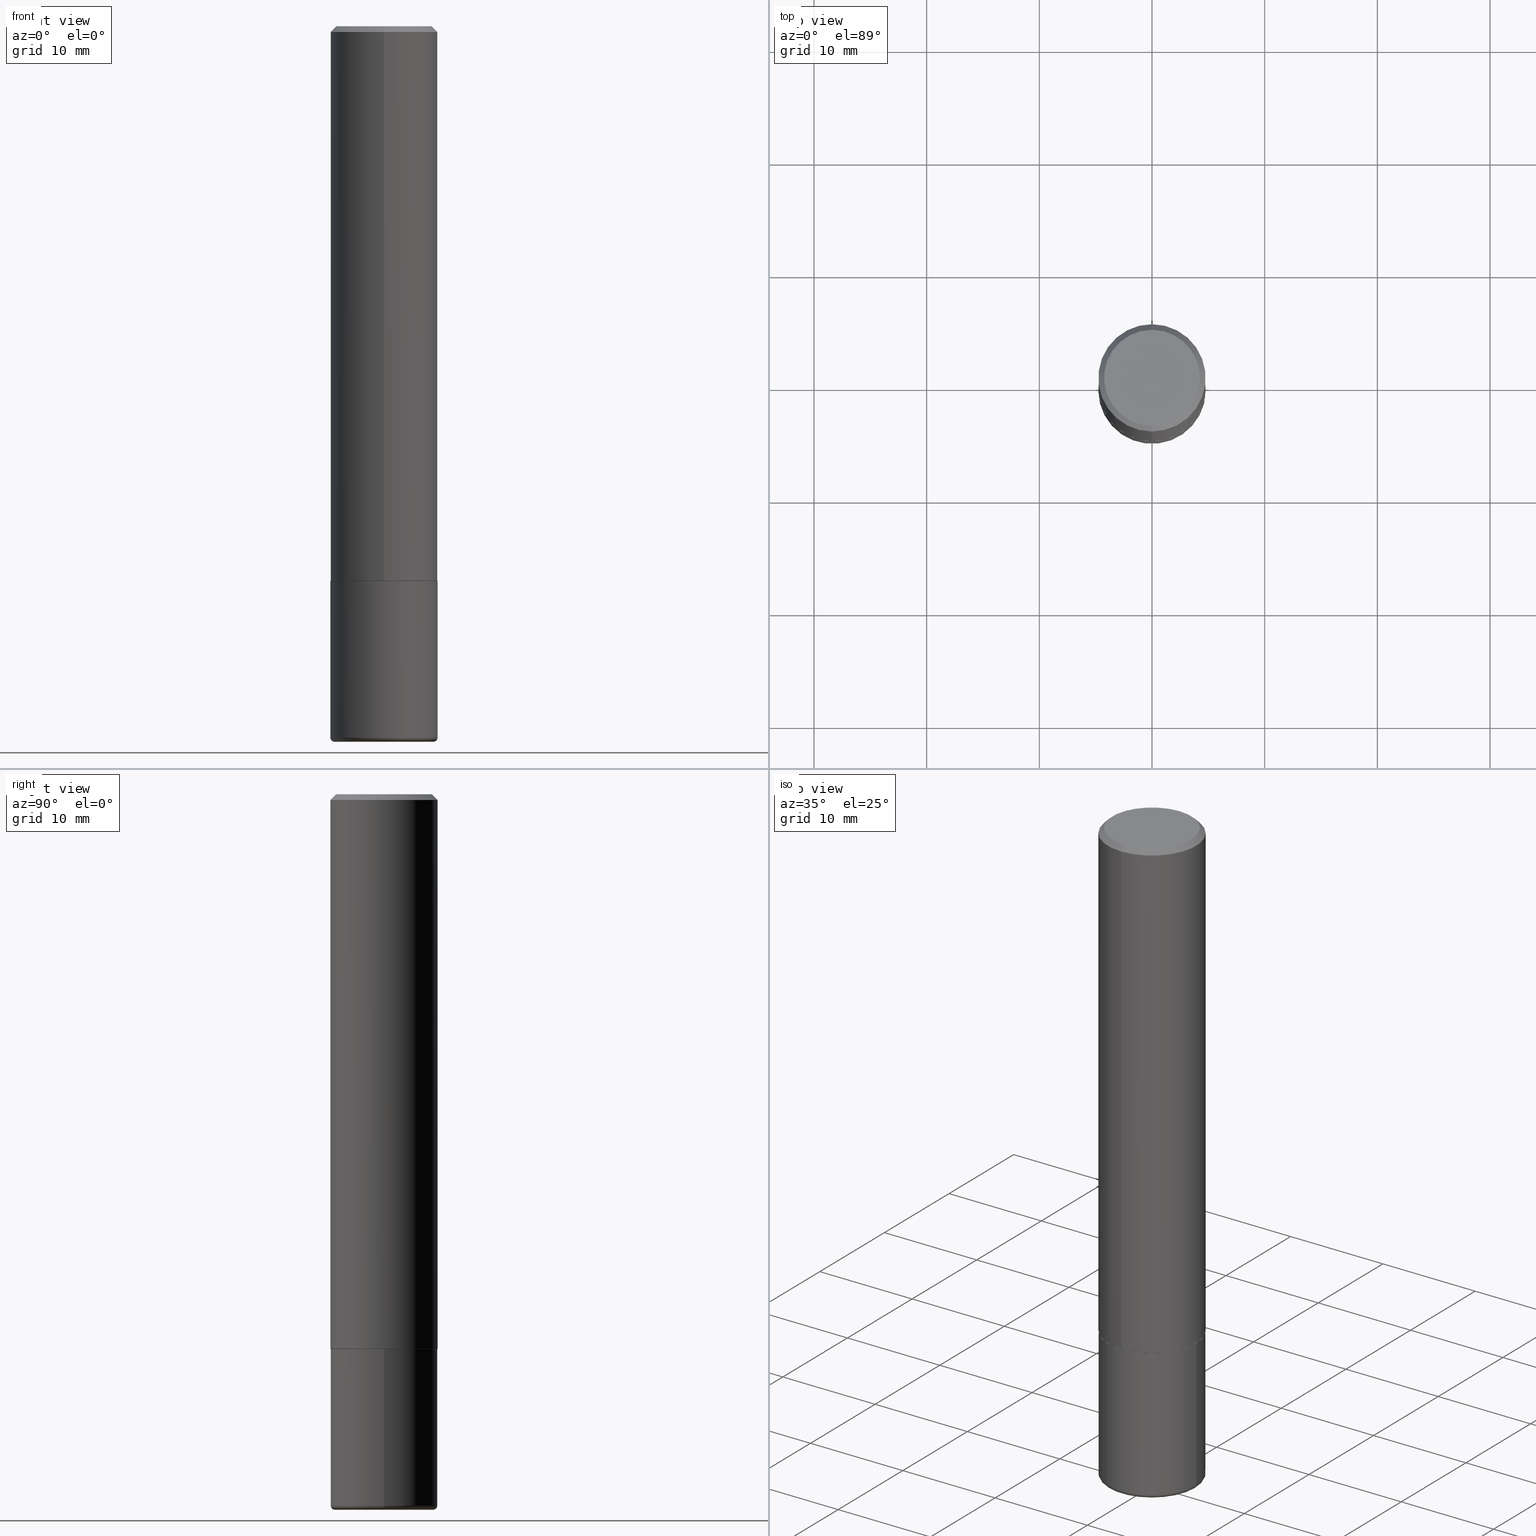
[diagram: canonical four-view strip — front | top / right | iso, engineering-drawing reading convention]
A machine part, canonical four-view strip (front | top / right | iso — engineering-drawing reading convention). The complete STEP part file that produces these views, byte-faithful:
ISO-10303-21;
HEADER;
FILE_DESCRIPTION (( 'STEP AP203' ),
    '1' );
FILE_NAME ('91244.STEP',
    '2024-03-06T17:16:14',
    ( '' ),
    ( '' ),
    'SwSTEP 2.0',
    'SolidWorks 2023',
    '' );
FILE_SCHEMA (( 'CONFIG_CONTROL_DESIGN' ));
ENDSEC;

DATA;
#1 = ORIENTED_EDGE ( 'NONE', *, *, #78, .T. ) ;
#2 = FACE_OUTER_BOUND ( 'NONE', #201, .T. ) ;
#3 = CARTESIAN_POINT ( 'NONE',  ( 1.325162202192633778E-15, 0.1864999999999932268, -1.938000000000000389 ) ) ;
#4 = VERTEX_POINT ( 'NONE', #258 ) ;
#5 = CARTESIAN_POINT ( 'NONE',  ( 6.113672015462842613E-29, -8.728703347107864943E-15, -2.500000000000000000 ) ) ;
#6 = AXIS2_PLACEMENT_3D ( 'NONE', #368, #16, #301 ) ;
#7 = APPROVAL ( #179, 'UNSPECIFIED' ) ;
#8 = ORIENTED_EDGE ( 'NONE', *, *, #147, .T. ) ;
#9 = PERSON_AND_ORGANIZATION ( #64, #192 ) ;
#10 = LENGTH_MEASURE_WITH_UNIT ( LENGTH_MEASURE( 0.02539999999999999897 ), #383 );
#11 = DIRECTION ( 'NONE',  ( -6.982962677686266711E-15, -1.000000000000000000, 3.483106191921935949E-15 ) ) ;
#12 = EDGE_CURVE ( 'NONE', #384, #259, #284, .T. ) ;
#13 = APPROVAL ( #26, 'UNSPECIFIED' ) ;
#14 = FACE_OUTER_BOUND ( 'NONE', #287, .T. ) ;
#15 = AXIS2_PLACEMENT_3D ( 'NONE', #274, #374, #215 ) ;
#16 = DIRECTION ( 'NONE',  ( -2.446468172034013014E-29, 3.490050190067182892E-15, 1.000000000000000000 ) ) ;
#17 = DIRECTION ( 'NONE',  ( -6.982962677686266711E-15, -1.000000000000000000, 3.490050190067182498E-15 ) ) ;
#18 = AXIS2_PLACEMENT_3D ( 'NONE', #311, #166, #11 ) ;
#19 = PRODUCT_DEFINITION_FORMATION_WITH_SPECIFIED_SOURCE ( 'ANY', '', #181, .NOT_KNOWN. ) ;
#20 = DIRECTION ( 'NONE',  ( -2.445468806185136597E-29, 3.491481338843145583E-15, 1.000000000000000000 ) ) ;
#21 = COORDINATED_UNIVERSAL_TIME_OFFSET ( 5, 0, .BEHIND. ) ;
#22 = APPROVAL_ROLE ( '' ) ;
#23 = EDGE_CURVE ( 'NONE', #202, #4, #389, .T. ) ;
#24 = CIRCLE ( 'NONE', #266, 0.1864999999999999714 ) ;
#25 = CC_DESIGN_APPROVAL ( #310, ( #19 ) ) ;
#26 = APPROVAL_STATUS ( 'not_yet_approved' ) ;
#27 = EDGE_CURVE ( 'NONE', #4, #289, #117, .T. ) ;
#28 = DIRECTION ( 'NONE',  ( 0.000000000000000000, 0.000000000000000000, 1.000000000000000000 ) ) ;
#29 = DATE_AND_TIME ( #188, #69 ) ;
#30 = ORIENTED_EDGE ( 'NONE', *, *, #47, .T. ) ;
#31 = VECTOR ( 'NONE', #175, 39.37007874015748143 ) ;
#32 = DESIGN_CONTEXT ( 'detailed design', #276, 'design' ) ;
#33 = ORIENTED_EDGE ( 'NONE', *, *, #271, .F. ) ;
#34 = CARTESIAN_POINT ( 'NONE',  ( 4.892936344068047188E-31, -6.980100380134394825E-17, -0.02000000000000008715 ) ) ;
#35 = DIRECTION ( 'NONE',  ( -2.446468172034013014E-29, 3.490050190067182892E-15, 1.000000000000000000 ) ) ;
#36 = ORIENTED_EDGE ( 'NONE', *, *, #342, .F. ) ;
#37 = DIRECTION ( 'NONE',  ( 2.446468172034013014E-29, -3.490050190067182892E-15, -1.000000000000000000 ) ) ;
#38 = DIRECTION ( 'NONE',  ( -2.446468172034013014E-29, 3.490050190067182892E-15, 1.000000000000000000 ) ) ;
#39 = EDGE_CURVE ( 'NONE', #289, #267, #72, .T. ) ;
#40 = ADVANCED_FACE ( 'NONE', ( #297 ), #307, .T. ) ;
#41 = ORIENTED_EDGE ( 'NONE', *, *, #12, .F. ) ;
#42 = CARTESIAN_POINT ( 'NONE',  ( 1.239475875289311118E-15, 0.1674999999999996492, -2.689531999887951949E-16 ) ) ;
#43 = AXIS2_PLACEMENT_3D ( 'NONE', #323, #37, #159 ) ;
#44 = EDGE_LOOP ( 'NONE', ( #391, #213, #52, #36 ) ) ;
#45 = UNCERTAINTY_MEASURE_WITH_UNIT (LENGTH_MEASURE( 1.000000000000000082E-05 ), #46, 'distance_accuracy_value', 'NONE');
#46 =( CONVERSION_BASED_UNIT ( 'INCH', #10 ) LENGTH_UNIT ( ) NAMED_UNIT ( #261 ) );
#47 = EDGE_CURVE ( 'NONE', #259, #322, #315, .T. ) ;
#48 = CARTESIAN_POINT ( 'NONE',  ( 0.000000000000000000, 0.000000000000000000, 0.000000000000000000 ) ) ;
#49 = EDGE_CURVE ( 'NONE', #384, #96, #240, .T. ) ;
#50 = CARTESIAN_POINT ( 'NONE',  ( 0.1874999999999999722, -1.309305502066174811E-15, 9.142831454617378210E-30 ) ) ;
#51 = MECHANICAL_CONTEXT ( 'NONE', #225, 'mechanical' ) ;
#52 = ORIENTED_EDGE ( 'NONE', *, *, #147, .F. ) ;
#53 = PRODUCT_DEFINITION_SHAPE ( 'NONE', 'NONE',  #347 ) ;
#54 = DIRECTION ( 'NONE',  ( 1.000000000000000000, -6.982962677686199657E-15, 0.000000000000000000 ) ) ;
#55 = VERTEX_POINT ( 'NONE', #234 ) ;
#56 = APPLICATION_PROTOCOL_DEFINITION ( 'international standard', 'config_control_design', 1994, #225 ) ;
#57 = CIRCLE ( 'NONE', #168, 0.1864999999999999714 ) ;
#58 = AXIS2_PLACEMENT_3D ( 'NONE', #353, #68, #196 ) ;
#59 = CYLINDRICAL_SURFACE ( 'NONE', #89, 0.1874999999999999722 ) ;
#60 = EDGE_CURVE ( 'NONE', #259, #55, #359, .T. ) ;
#61 = DATE_AND_TIME ( #249, #94 ) ;
#62 = COORDINATED_UNIVERSAL_TIME_OFFSET ( 5, 0, .BEHIND. ) ;
#63 = ORIENTED_EDGE ( 'NONE', *, *, #167, .T. ) ;
#64 = PERSON ( 'UNSPECIFIED', 'UNSPECIFIED', 'UNSPECIFIED', ('UNSPECIFIED'), ('UNSPECIFIED'), ('UNSPECIFIED') ) ;
#65 = VECTOR ( 'NONE', #227, 39.37007874015748143 ) ;
#66 = DIRECTION ( 'NONE',  ( -6.982962677686266711E-15, -1.000000000000000000, 3.483106191921935949E-15 ) ) ;
#67 = AXIS2_PLACEMENT_3D ( 'NONE', #157, #38, #208 ) ;
#68 = DIRECTION ( 'NONE',  ( -2.445468806185136597E-29, 3.491481338843145583E-15, 1.000000000000000000 ) ) ;
#69 = LOCAL_TIME ( 12, 16, 14.00000000000000000, #62 ) ;
#70 = DIRECTION ( 'NONE',  ( -1.000000000000000000, 7.105427357600986081E-15, 0.000000000000000000 ) ) ;
#71 = EDGE_LOOP ( 'NONE', ( #105, #295 ) ) ;
#72 = LINE ( 'NONE', #200, #93 ) ;
#73 = EDGE_LOOP ( 'NONE', ( #352, #262 ) ) ;
#74 = DIRECTION ( 'NONE',  ( 4.937700262164538576E-15, 0.7071067811865437980, -0.7071067811865511255 ) ) ;
#75 = PLANE ( 'NONE',  #169 ) ;
#76 = DIRECTION ( 'NONE',  ( -2.445468806185136877E-29, 3.491481338843145188E-15, 1.000000000000000000 ) ) ;
#77 = EDGE_LOOP ( 'NONE', ( #63, #141, #207, #99 ) ) ;
#78 = EDGE_CURVE ( 'NONE', #129, #267, #393, .T. ) ;
#79 = LOCAL_TIME ( 12, 16, 14.00000000000000000, #21 ) ;
#80 = ORIENTED_EDGE ( 'NONE', *, *, #214, .T. ) ;
#81 = CC_DESIGN_PERSON_AND_ORGANIZATION_ASSIGNMENT ( #177, #114, ( #181 ) ) ;
#82 = DIRECTION ( 'NONE',  ( 1.000000000000000000, -6.982962677686263555E-15, 4.883557194083111219E-29 ) ) ;
#83 = ORIENTED_EDGE ( 'NONE', *, *, #60, .F. ) ;
#84 = ORIENTED_EDGE ( 'NONE', *, *, #116, .T. ) ;
#85 = DIRECTION ( 'NONE',  ( 1.000000000000000000, 0.000000000000000000, 0.000000000000000000 ) ) ;
#86 = CARTESIAN_POINT ( 'NONE',  ( 4.739318546386794397E-29, -6.766490834678016045E-15, -1.937999999999999945 ) ) ;
#87 = ORIENTED_EDGE ( 'NONE', *, *, #377, .F. ) ;
#88 = AXIS2_PLACEMENT_3D ( 'NONE', #264, #257, #343 ) ;
#89 = AXIS2_PLACEMENT_3D ( 'NONE', #102, #256, #361 ) ;
#90 = CC_DESIGN_APPROVAL ( #13, ( #286 ) ) ;
#91 = CALENDAR_DATE ( 2024, 6, 3 ) ;
#92 = DIRECTION ( 'NONE',  ( -2.446468172034013014E-29, 3.490050190067182892E-15, 1.000000000000000000 ) ) ;
#93 = VECTOR ( 'NONE', #324, 39.37007874015748143 ) ;
#94 = LOCAL_TIME ( 12, 16, 14.00000000000000000, #346 ) ;
#95 = ORIENTED_EDGE ( 'NONE', *, *, #98, .T. ) ;
#96 = VERTEX_POINT ( 'NONE', #125 ) ;
#97 = DIRECTION ( 'NONE',  ( -2.445468806185136597E-29, 3.491481338843145583E-15, 1.000000000000000000 ) ) ;
#98 = EDGE_CURVE ( 'NONE', #104, #416, #194, .T. ) ;
#99 = ORIENTED_EDGE ( 'NONE', *, *, #195, .F. ) ;
#100 = AXIS2_PLACEMENT_3D ( 'NONE', #190, #288, #199 ) ;
#101 = ORIENTED_EDGE ( 'NONE', *, *, #342, .T. ) ;
#102 = CARTESIAN_POINT ( 'NONE',  ( 0.000000000000000000, 0.000000000000000000, 0.000000000000000000 ) ) ;
#103 = CARTESIAN_POINT ( 'NONE',  ( 1.332267629550188243E-15, 0.1875000000000000833, -6.543844106375971128E-16 ) ) ;
#104 = VERTEX_POINT ( 'NONE', #42 ) ;
#105 = ORIENTED_EDGE ( 'NONE', *, *, #121, .F. ) ;
#106 = DIRECTION ( 'NONE',  ( 2.446468172034013014E-29, -3.490050190067182892E-15, -1.000000000000000000 ) ) ;
#107 = AXIS2_PLACEMENT_3D ( 'NONE', #149, #380, #356 ) ;
#108 = AXIS2_PLACEMENT_3D ( 'NONE', #358, #260, #66 ) ;
#109 = DATE_AND_TIME ( #400, #203 ) ;
#110 = VECTOR ( 'NONE', #76, 39.37007874015748143 ) ;
#111 =( GEOMETRIC_REPRESENTATION_CONTEXT ( 3 ) GLOBAL_UNCERTAINTY_ASSIGNED_CONTEXT ( ( #45 ) ) GLOBAL_UNIT_ASSIGNED_CONTEXT ( ( #46, #277, #272 ) ) REPRESENTATION_CONTEXT ( 'NONE', 'WORKASPACE' ) );
#112 = CARTESIAN_POINT ( 'NONE',  ( -0.1725000000000000144, -7.423540312698360130E-15, -2.500000000000000000 ) ) ;
#113 = CARTESIAN_POINT ( 'NONE',  ( 0.000000000000000000, 0.000000000000000000, 0.000000000000000000 ) ) ;
#114 = PERSON_AND_ORGANIZATION_ROLE ( 'design_owner' ) ;
#115 = ORIENTED_EDGE ( 'NONE', *, *, #363, .F. ) ;
#116 = EDGE_CURVE ( 'NONE', #416, #267, #142, .T. ) ;
#117 = CIRCLE ( 'NONE', #107, 0.1875000000000001943 ) ;
#118 = CONICAL_SURFACE ( 'NONE', #6, 0.1864999999999999714, 0.7853981633975165577 ) ;
#119 = COORDINATED_UNIVERSAL_TIME_OFFSET ( 5, 0, .BEHIND. ) ;
#120 = APPROVAL_ROLE ( '' ) ;
#121 = EDGE_CURVE ( 'NONE', #268, #202, #57, .T. ) ;
#122 = SECURITY_CLASSIFICATION_LEVEL ( 'unclassified' ) ;
#123 = AXIS2_PLACEMENT_3D ( 'NONE', #34, #106, #269 ) ;
#124 = ORIENTED_EDGE ( 'NONE', *, *, #265, .T. ) ;
#125 = CARTESIAN_POINT ( 'NONE',  ( 0.1725000000000000144, -9.933264409008746581E-15, -2.500000000000000000 ) ) ;
#126 = DIRECTION ( 'NONE',  ( 6.982962677686265922E-15, 1.000000000000000000, -3.490050190067182892E-15 ) ) ;
#127 = CYLINDRICAL_SURFACE ( 'NONE', #390, 0.1875000000000000833 ) ;
#128 = CC_DESIGN_DATE_AND_TIME_ASSIGNMENT ( #376, #218, ( #286 ) ) ;
#129 = VERTEX_POINT ( 'NONE', #396 ) ;
#130 = CARTESIAN_POINT ( 'NONE',  ( -1.302322539388441071E-15, -0.1865000000000067437, -1.937999999999999279 ) ) ;
#131 = EDGE_LOOP ( 'NONE', ( #155, #313 ) ) ;
#132 = DIRECTION ( 'NONE',  ( -2.445468806185136597E-29, 3.491481338843145583E-15, 1.000000000000000000 ) ) ;
#133 = AXIS2_PLACEMENT_3D ( 'NONE', #204, #97, #290 ) ;
#134 = LINE ( 'NONE', #103, #216 ) ;
#135 = ORIENTED_EDGE ( 'NONE', *, *, #220, .T. ) ;
#136 = ORIENTED_EDGE ( 'NONE', *, *, #195, .T. ) ;
#137 = CONICAL_SURFACE ( 'NONE', #211, 0.1864999999999999714, 0.7853981633975165577 ) ;
#138 = APPROVAL_PERSON_ORGANIZATION ( #184, #13, #221 ) ;
#139 = CARTESIAN_POINT ( 'NONE',  ( 4.738808849229882845E-29, -6.760227218160132917E-15, -1.936999999999999833 ) ) ;
#140 = PERSON_AND_ORGANIZATION_ROLE ( 'creator' ) ;
#141 = ORIENTED_EDGE ( 'NONE', *, *, #60, .T. ) ;
#142 = CIRCLE ( 'NONE', #18, 0.1874999999999999722 ) ;
#143 = CIRCLE ( 'NONE', #246, 0.1874999999999999722 ) ;
#144 = CARTESIAN_POINT ( 'NONE',  ( 4.739318546386794397E-29, -6.766490834678016045E-15, -1.937999999999999945 ) ) ;
#145 = PERSON_AND_ORGANIZATION_ROLE ( 'creator' ) ;
#146 = ADVANCED_FACE ( 'NONE', ( #14 ), #253, .T. ) ;
#147 = EDGE_CURVE ( 'NONE', #289, #4, #236, .T. ) ;
#148 = APPROVAL_DATE_TIME ( #29, #13 ) ;
#149 = CARTESIAN_POINT ( 'NONE',  ( 4.738808849229882845E-29, -6.760227218160132917E-15, -1.936999999999999833 ) ) ;
#150 = DIRECTION ( 'NONE',  ( -6.982962677686265922E-15, -1.000000000000000000, 3.490050190067182892E-15 ) ) ;
#151 = CLOSED_SHELL ( 'NONE', ( #183, #280, #206, #339, #146, #40 ) ) ;
#152 = ORIENTED_EDGE ( 'NONE', *, *, #271, .T. ) ;
#153 = AXIS2_PLACEMENT_3D ( 'NONE', #113, #28, #85 ) ;
#154 = FACE_OUTER_BOUND ( 'NONE', #367, .T. ) ;
#155 = ORIENTED_EDGE ( 'NONE', *, *, #300, .T. ) ;
#156 = DIRECTION ( 'NONE',  ( -4.937700262164884886E-15, -0.7071067811865933139, 0.7071067811865017205 ) ) ;
#157 = CARTESIAN_POINT ( 'NONE',  ( -7.721792551848147556E-45, 1.101565263398910522E-30, 3.156302068474566507E-16 ) ) ;
#158 = ORIENTED_EDGE ( 'NONE', *, *, #167, .F. ) ;
#159 = DIRECTION ( 'NONE',  ( 6.982962677686266711E-15, 1.000000000000000000, -3.483106191921935949E-15 ) ) ;
#160 = DIRECTION ( 'NONE',  ( -2.445468806185136597E-29, 3.491481338843145583E-15, 1.000000000000000000 ) ) ;
#161 = CARTESIAN_POINT ( 'NONE',  ( 4.741255317401917620E-29, -6.763717268350199855E-15, -1.937999999999999945 ) ) ;
#162 = AXIS2_PLACEMENT_3D ( 'NONE', #139, #404, #337 ) ;
#163 = CC_DESIGN_PERSON_AND_ORGANIZATION_ASSIGNMENT ( #306, #412, ( #286 ) ) ;
#164 = ORIENTED_EDGE ( 'NONE', *, *, #418, .T. ) ;
#165 = ORIENTED_EDGE ( 'NONE', *, *, #220, .F. ) ;
#166 = DIRECTION ( 'NONE',  ( -2.446468172034013014E-29, 3.490050190067182892E-15, 1.000000000000000000 ) ) ;
#167 = EDGE_CURVE ( 'NONE', #322, #259, #373, .T. ) ;
#168 = AXIS2_PLACEMENT_3D ( 'NONE', #161, #92, #270 ) ;
#169 = AXIS2_PLACEMENT_3D ( 'NONE', #198, #350, #126 ) ;
#170 = DIRECTION ( 'NONE',  ( -2.445468806185136597E-29, 3.491481338843145583E-15, 1.000000000000000000 ) ) ;
#171 = CARTESIAN_POINT ( 'NONE',  ( 4.741255317401917620E-29, -6.763717268350199855E-15, -1.937999999999999945 ) ) ;
#172 = FACE_OUTER_BOUND ( 'NONE', #44, .T. ) ;
#173 = ORIENTED_EDGE ( 'NONE', *, *, #39, .F. ) ;
#174 = CARTESIAN_POINT ( 'NONE',  ( 1.328714915871435071E-15, 0.1864999999999932268, -1.938000000000000389 ) ) ;
#175 = DIRECTION ( 'NONE',  ( -2.445468806185136877E-29, 3.491481338843145188E-15, 1.000000000000000000 ) ) ;
#176 = ORIENTED_EDGE ( 'NONE', *, *, #23, .F. ) ;
#177 = PERSON_AND_ORGANIZATION ( #64, #192 ) ;
#178 = PERSON_AND_ORGANIZATION_ROLE ( 'design_supplier' ) ;
#179 = APPROVAL_STATUS ( 'not_yet_approved' ) ;
#180 = DATE_AND_TIME ( #91, #79 ) ;
#181 = PRODUCT ( '91244', '91244', '', ( #51 ) ) ;
#182 = PLANE ( 'NONE',  #415 ) ;
#183 = ADVANCED_FACE ( 'NONE', ( #370 ), #241, .T. ) ;
#184 = PERSON_AND_ORGANIZATION ( #64, #192 ) ;
#185 = AXIS2_PLACEMENT_3D ( 'NONE', #345, #160, #293 ) ;
#186 = APPROVAL_DATE_TIME ( #61, #7 ) ;
#187 = CONICAL_SURFACE ( 'NONE', #43, 0.1874999999999999722, 0.7853981633974466137 ) ;
#188 = CALENDAR_DATE ( 2024, 6, 3 ) ;
#189 = ADVANCED_FACE ( 'NONE', ( #172 ), #118, .T. ) ;
#190 = CARTESIAN_POINT ( 'NONE',  ( 0.000000000000000000, 0.000000000000000000, 0.000000000000000000 ) ) ;
#191 = CARTESIAN_POINT ( 'NONE',  ( -0.1724999999999999589, -7.450644907839043165E-15, -2.484999999999999876 ) ) ;
#192 = ORGANIZATION ( 'UNSPECIFIED', 'UNSPECIFIED', '' ) ;
#193 = ORIENTED_EDGE ( 'NONE', *, *, #229, .T. ) ;
#194 = LINE ( 'NONE', #319, #348 ) ;
#195 = EDGE_CURVE ( 'NONE', #322, #228, #212, .T. ) ;
#196 = DIRECTION ( 'NONE',  ( 1.000000000000000000, -6.982962677686263555E-15, 4.883557194083111219E-29 ) ) ;
#197 = ORIENTED_EDGE ( 'NONE', *, *, #78, .F. ) ;
#198 = CARTESIAN_POINT ( 'NONE',  ( 1.169646248512447229E-15, 0.1674999999999996492, -4.267683034125235203E-16 ) ) ;
#199 = DIRECTION ( 'NONE',  ( -6.982962677686266711E-15, -1.000000000000000000, 3.490050190067182892E-15 ) ) ;
#200 = CARTESIAN_POINT ( 'NONE',  ( -1.309305502066175600E-15, -0.1875000000000000833, 6.543844106375971128E-16 ) ) ;
#201 = EDGE_LOOP ( 'NONE', ( #124, #327, #158, #381 ) ) ;
#202 = VERTEX_POINT ( 'NONE', #174 ) ;
#203 = LOCAL_TIME ( 12, 16, 14.00000000000000000, #371 ) ;
#204 = CARTESIAN_POINT ( 'NONE',  ( 6.113672015462842613E-29, -8.728703347107864943E-15, -2.500000000000000000 ) ) ;
#205 = LOCAL_TIME ( 12, 16, 14.00000000000000000, #119 ) ;
#206 = ADVANCED_FACE ( 'NONE', ( #302 ), #281, .F. ) ;
#207 = ORIENTED_EDGE ( 'NONE', *, *, #229, .F. ) ;
#208 = DIRECTION ( 'NONE',  ( -6.982962677686266711E-15, -1.000000000000000000, 3.490050190067182498E-15 ) ) ;
#209 = PERSON_AND_ORGANIZATION ( #64, #192 ) ;
#210 = CARTESIAN_POINT ( 'NONE',  ( -7.721792551848147556E-45, 1.101565263398910522E-30, 3.156302068474566507E-16 ) ) ;
#211 = AXIS2_PLACEMENT_3D ( 'NONE', #171, #299, #245 ) ;
#212 = LINE ( 'NONE', #50, #31 ) ;
#213 = ORIENTED_EDGE ( 'NONE', *, *, #23, .T. ) ;
#214 = EDGE_CURVE ( 'NONE', #96, #322, #222, .T. ) ;
#215 = DIRECTION ( 'NONE',  ( 1.000000000000000000, -6.982962677686269077E-15, 0.000000000000000000 ) ) ;
#216 = VECTOR ( 'NONE', #314, 39.37007874015748143 ) ;
#217 = CARTESIAN_POINT ( 'NONE',  ( 1.309305502066175205E-15, 0.1874999999999999167, -0.02000000000000073941 ) ) ;
#218 = DATE_TIME_ROLE ( 'classification_date' ) ;
#219 = PERSON_AND_ORGANIZATION ( #64, #192 ) ;
#220 = EDGE_CURVE ( 'NONE', #55, #228, #285, .T. ) ;
#221 = APPROVAL_ROLE ( '' ) ;
#222 = CIRCLE ( 'NONE', #309, 0.01500000000000014690 ) ;
#223 = ORIENTED_EDGE ( 'NONE', *, *, #27, .T. ) ;
#224 = FACE_OUTER_BOUND ( 'NONE', #131, .T. ) ;
#225 = APPLICATION_CONTEXT ( 'configuration controlled 3d designs of mechanical parts and assemblies' ) ;
#226 = AXIS2_PLACEMENT_3D ( 'NONE', #304, #20, #282 ) ;
#227 = DIRECTION ( 'NONE',  ( 5.024295867788404755E-15, 0.7071067811865981989, 0.7071067811864968355 ) ) ;
#228 = VERTEX_POINT ( 'NONE', #407 ) ;
#229 = EDGE_CURVE ( 'NONE', #228, #55, #143, .T. ) ;
#230 = CARTESIAN_POINT ( 'NONE',  ( -1.302322539388441071E-15, -0.1865000000000067437, -1.937999999999999279 ) ) ;
#231 = DIRECTION ( 'NONE',  ( 1.000000000000000000, -6.982962677686267499E-15, 0.000000000000000000 ) ) ;
#232 = DIRECTION ( 'NONE',  ( -6.982962677686266711E-15, -1.000000000000000000, 3.490050190067182892E-15 ) ) ;
#233 = ORIENTED_EDGE ( 'NONE', *, *, #39, .T. ) ;
#234 = CARTESIAN_POINT ( 'NONE',  ( -0.1874999999999999722, -6.389143351301428514E-15, -1.937999999999999945 ) ) ;
#235 = FACE_OUTER_BOUND ( 'NONE', #387, .T. ) ;
#236 = CIRCLE ( 'NONE', #162, 0.1875000000000001943 ) ;
#237 = ADVANCED_BREP_SHAPE_REPRESENTATION ( '91244', ( #316, #330, #153 ), #111 ) ;
#238 = ADVANCED_FACE ( 'NONE', ( #395 ), #273, .T. ) ;
#239 = CARTESIAN_POINT ( 'NONE',  ( 6.076989983370064174E-29, -8.676331127025216680E-15, -2.484999999999999876 ) ) ;
#240 = CIRCLE ( 'NONE', #354, 0.1725000000000000144 ) ;
#241 = CYLINDRICAL_SURFACE ( 'NONE', #405, 0.1874999999999999722 ) ;
#242 = FACE_OUTER_BOUND ( 'NONE', #357, .T. ) ;
#243 = CARTESIAN_POINT ( 'NONE',  ( 0.1724999999999999589, -9.880892188926098319E-15, -2.484999999999999876 ) ) ;
#244 = DIRECTION ( 'NONE',  ( 2.438088387897960049E-29, -3.491481338843145188E-15, -1.000000000000000000 ) ) ;
#245 = DIRECTION ( 'NONE',  ( -6.982962677686265922E-15, -1.000000000000000000, 2.929595703661408850E-15 ) ) ;
#246 = AXIS2_PLACEMENT_3D ( 'NONE', #86, #388, #394 ) ;
#247 = CALENDAR_DATE ( 2024, 6, 3 ) ;
#248 = CC_DESIGN_SECURITY_CLASSIFICATION ( #286, ( #19 ) ) ;
#249 = CALENDAR_DATE ( 2024, 6, 3 ) ;
#250 = ADVANCED_FACE ( 'NONE', ( #235 ), #417, .T. ) ;
#251 = DIRECTION ( 'NONE',  ( -2.446468172034012734E-29, 3.490050190067182892E-15, 1.000000000000000000 ) ) ;
#252 = SHAPE_DEFINITION_REPRESENTATION ( #53, #237 ) ;
#253 = TOROIDAL_SURFACE ( 'NONE', #365, 0.1724999999999999589, 0.01500000000000012955 ) ;
#254 = APPROVAL_PERSON_ORGANIZATION ( #209, #310, #120 ) ;
#255 = EDGE_LOOP ( 'NONE', ( #193, #135 ) ) ;
#256 = DIRECTION ( 'NONE',  ( -2.445468806185136597E-29, 3.491481338843145583E-15, 1.000000000000000000 ) ) ;
#257 = DIRECTION ( 'NONE',  ( 2.438088387897960049E-29, -3.491481338843145188E-15, -1.000000000000000000 ) ) ;
#258 = CARTESIAN_POINT ( 'NONE',  ( 1.332267629550212500E-15, 0.1874999999999934219, -1.937000000000000499 ) ) ;
#259 = VERTEX_POINT ( 'NONE', #362 ) ;
#260 = DIRECTION ( 'NONE',  ( -2.446468172034013014E-29, 3.490050190067182892E-15, 1.000000000000000000 ) ) ;
#261 = DIMENSIONAL_EXPONENTS ( 1.000000000000000000, 0.000000000000000000, 0.000000000000000000, 0.000000000000000000, 0.000000000000000000, 0.000000000000000000, 0.000000000000000000 ) ;
#262 = ORIENTED_EDGE ( 'NONE', *, *, #49, .F. ) ;
#263 = FACE_OUTER_BOUND ( 'NONE', #305, .T. ) ;
#264 = CARTESIAN_POINT ( 'NONE',  ( 6.113672015462842613E-29, -8.728703347107864943E-15, -2.500000000000000000 ) ) ;
#265 = EDGE_CURVE ( 'NONE', #96, #384, #397, .T. ) ;
#266 = AXIS2_PLACEMENT_3D ( 'NONE', #378, #35, #312 ) ;
#267 = VERTEX_POINT ( 'NONE', #329 ) ;
#268 = VERTEX_POINT ( 'NONE', #130 ) ;
#269 = DIRECTION ( 'NONE',  ( 6.982962677686266711E-15, 1.000000000000000000, -3.483106191921935949E-15 ) ) ;
#270 = DIRECTION ( 'NONE',  ( -6.982962677686265922E-15, -1.000000000000000000, 2.929595703661408850E-15 ) ) ;
#271 = EDGE_CURVE ( 'NONE', #4, #416, #134, .T. ) ;
#272 =( NAMED_UNIT ( * ) SI_UNIT ( $, .STERADIAN. ) SOLID_ANGLE_UNIT ( ) );
#273 = CONICAL_SURFACE ( 'NONE', #123, 0.1874999999999999722, 0.7853981633974466137 ) ;
#274 = CARTESIAN_POINT ( 'NONE',  ( 6.076989983370064174E-29, -8.676331127025216680E-15, -2.484999999999999876 ) ) ;
#275 = ADVANCED_FACE ( 'NONE', ( #154 ), #127, .T. ) ;
#276 = APPLICATION_CONTEXT ( 'configuration controlled 3d designs of mechanical parts and assemblies' ) ;
#277 =( NAMED_UNIT ( * ) PLANE_ANGLE_UNIT ( ) SI_UNIT ( $, .RADIAN. ) );
#278 = DATE_TIME_ROLE ( 'creation_date' ) ;
#279 = CC_DESIGN_DATE_AND_TIME_ASSIGNMENT ( #109, #278, ( #347 ) ) ;
#280 = ADVANCED_FACE ( 'NONE', ( #2 ), #379, .T. ) ;
#281 = PLANE ( 'NONE',  #283 ) ;
#282 = DIRECTION ( 'NONE',  ( 1.000000000000000000, -6.982962677686269077E-15, 0.000000000000000000 ) ) ;
#283 = AXIS2_PLACEMENT_3D ( 'NONE', #144, #244, #406 ) ;
#284 = CIRCLE ( 'NONE', #410, 0.01500000000000014690 ) ;
#285 = CIRCLE ( 'NONE', #226, 0.1874999999999999722 ) ;
#286 = SECURITY_CLASSIFICATION ( '', '', #122 ) ;
#287 = EDGE_LOOP ( 'NONE', ( #41, #392, #80, #317 ) ) ;
#288 = DIRECTION ( 'NONE',  ( -2.446468172034013014E-29, 3.490050190067182892E-15, 1.000000000000000000 ) ) ;
#289 = VERTEX_POINT ( 'NONE', #320 ) ;
#290 = DIRECTION ( 'NONE',  ( 1.000000000000000000, -6.982962677686267499E-15, 0.000000000000000000 ) ) ;
#291 = CC_DESIGN_PERSON_AND_ORGANIZATION_ASSIGNMENT ( #344, #178, ( #19 ) ) ;
#292 = ORIENTED_EDGE ( 'NONE', *, *, #300, .F. ) ;
#293 = DIRECTION ( 'NONE',  ( 1.000000000000000000, -6.982962677686269077E-15, 0.000000000000000000 ) ) ;
#294 = APPROVAL_PERSON_ORGANIZATION ( #219, #7, #22 ) ;
#295 = ORIENTED_EDGE ( 'NONE', *, *, #418, .F. ) ;
#296 = EDGE_LOOP ( 'NONE', ( #87, #1, #355, #331 ) ) ;
#297 = FACE_OUTER_BOUND ( 'NONE', #73, .T. ) ;
#298 = VECTOR ( 'NONE', #156, 39.37007874015748143 ) ;
#299 = DIRECTION ( 'NONE',  ( -2.446468172034013014E-29, 3.490050190067182892E-15, 1.000000000000000000 ) ) ;
#300 = EDGE_CURVE ( 'NONE', #104, #129, #334, .T. ) ;
#301 = DIRECTION ( 'NONE',  ( -6.982962677686265922E-15, -1.000000000000000000, 2.929595703661408850E-15 ) ) ;
#302 = FACE_OUTER_BOUND ( 'NONE', #255, .T. ) ;
#303 = CIRCLE ( 'NONE', #108, 0.1874999999999999722 ) ;
#304 = CARTESIAN_POINT ( 'NONE',  ( 4.739318546386794397E-29, -6.766490834678016045E-15, -1.937999999999999945 ) ) ;
#305 = EDGE_LOOP ( 'NONE', ( #197, #292, #95, #84 ) ) ;
#306 = PERSON_AND_ORGANIZATION ( #64, #192 ) ;
#307 = PLANE ( 'NONE',  #88 ) ;
#308 = CARTESIAN_POINT ( 'NONE',  ( 4.741255317401917620E-29, -6.763717268350199855E-15, -1.937999999999999945 ) ) ;
#309 = AXIS2_PLACEMENT_3D ( 'NONE', #243, #338, #54 ) ;
#310 = APPROVAL ( #403, 'UNSPECIFIED' ) ;
#311 = CARTESIAN_POINT ( 'NONE',  ( 4.892936344068047188E-31, -6.980100380134394825E-17, -0.02000000000000008715 ) ) ;
#312 = DIRECTION ( 'NONE',  ( -6.982962677686265922E-15, -1.000000000000000000, 2.929595703661408850E-15 ) ) ;
#313 = ORIENTED_EDGE ( 'NONE', *, *, #377, .T. ) ;
#314 = DIRECTION ( 'NONE',  ( -2.446468172034013014E-29, 3.490050190067182892E-15, 1.000000000000000000 ) ) ;
#315 = CIRCLE ( 'NONE', #185, 0.1874999999999999722 ) ;
#316 = MANIFOLD_SOLID_BREP ( 'Body-Move/Copy2[1]', #151 ) ;
#317 = ORIENTED_EDGE ( 'NONE', *, *, #47, .F. ) ;
#318 = CC_DESIGN_PERSON_AND_ORGANIZATION_ASSIGNMENT ( #408, #145, ( #19 ) ) ;
#319 = CARTESIAN_POINT ( 'NONE',  ( 1.309305502066175205E-15, 0.1874999999999999167, -0.02000000000000073941 ) ) ;
#320 = CARTESIAN_POINT ( 'NONE',  ( -1.309305502066128860E-15, -0.1875000000000069389, -1.936999999999999389 ) ) ;
#321 = DIRECTION ( 'NONE',  ( 7.105427357601001859E-15, 1.000000000000000000, -3.491481338843145583E-15 ) ) ;
#322 = VERTEX_POINT ( 'NONE', #332 ) ;
#323 = CARTESIAN_POINT ( 'NONE',  ( 4.892936344068047188E-31, -6.980100380134394825E-17, -0.02000000000000008715 ) ) ;
#324 = DIRECTION ( 'NONE',  ( -2.446468172034013014E-29, 3.490050190067182892E-15, 1.000000000000000000 ) ) ;
#325 = ORIENTED_EDGE ( 'NONE', *, *, #116, .F. ) ;
#326 = CC_DESIGN_APPROVAL ( #7, ( #347 ) ) ;
#327 = ORIENTED_EDGE ( 'NONE', *, *, #12, .T. ) ;
#328 = CARTESIAN_POINT ( 'NONE',  ( -0.1874999999999999722, 1.332267629550187651E-15, -9.223003294227946589E-30 ) ) ;
#329 = CARTESIAN_POINT ( 'NONE',  ( -1.286343374582161379E-15, -0.1875000000000000555, -0.01999999999999943143 ) ) ;
#330 = MANIFOLD_SOLID_BREP ( 'Body-Move/Copy2[2]', #372 ) ;
#331 = ORIENTED_EDGE ( 'NONE', *, *, #98, .F. ) ;
#332 = CARTESIAN_POINT ( 'NONE',  ( 0.1875000000000000555, -9.985636629091391688E-15, -2.484999999999999876 ) ) ;
#333 = DIRECTION ( 'NONE',  ( 1.000000000000000000, -6.982962677686266711E-15, 4.876176775795935793E-29 ) ) ;
#334 = CIRCLE ( 'NONE', #67, 0.1674999999999996492 ) ;
#335 = ADVANCED_FACE ( 'NONE', ( #409 ), #182, .F. ) ;
#336 = CARTESIAN_POINT ( 'NONE',  ( -1.286343374582161379E-15, -0.1875000000000000555, -0.01999999999999943143 ) ) ;
#337 = DIRECTION ( 'NONE',  ( -6.982962677686265922E-15, -1.000000000000000000, 2.913971193241877611E-15 ) ) ;
#338 = DIRECTION ( 'NONE',  ( -6.982962677686266711E-15, -1.000000000000000000, 3.491481338843145583E-15 ) ) ;
#339 = ADVANCED_FACE ( 'NONE', ( #414 ), #59, .T. ) ;
#340 = AXIS2_PLACEMENT_3D ( 'NONE', #210, #402, #17 ) ;
#341 = APPROVAL_DATE_TIME ( #180, #310 ) ;
#342 = EDGE_CURVE ( 'NONE', #268, #289, #382, .T. ) ;
#343 = DIRECTION ( 'NONE',  ( -1.000000000000000000, 6.982962677686265922E-15, -4.876176775795935793E-29 ) ) ;
#344 = PERSON_AND_ORGANIZATION ( #64, #192 ) ;
#345 = CARTESIAN_POINT ( 'NONE',  ( 6.076989983370064174E-29, -8.676331127025216680E-15, -2.484999999999999876 ) ) ;
#346 = COORDINATED_UNIVERSAL_TIME_OFFSET ( 5, 0, .BEHIND. ) ;
#347 = PRODUCT_DEFINITION ( 'UNKNOWN', '', #19, #32 ) ;
#348 = VECTOR ( 'NONE', #74, 39.37007874015748854 ) ;
#349 = EDGE_LOOP ( 'NONE', ( #83, #30, #136, #165 ) ) ;
#350 = DIRECTION ( 'NONE',  ( 2.446468172034012734E-29, -3.490050190067182892E-15, -1.000000000000000000 ) ) ;
#351 = ADVANCED_FACE ( 'NONE', ( #224 ), #75, .F. ) ;
#352 = ORIENTED_EDGE ( 'NONE', *, *, #265, .F. ) ;
#353 = CARTESIAN_POINT ( 'NONE',  ( 6.076989983370064174E-29, -8.676331127025216680E-15, -2.484999999999999876 ) ) ;
#354 = AXIS2_PLACEMENT_3D ( 'NONE', #5, #132, #231 ) ;
#355 = ORIENTED_EDGE ( 'NONE', *, *, #363, .T. ) ;
#356 = DIRECTION ( 'NONE',  ( -6.982962677686265922E-15, -1.000000000000000000, 2.913971193241877611E-15 ) ) ;
#357 = EDGE_LOOP ( 'NONE', ( #176, #164, #101, #413 ) ) ;
#358 = CARTESIAN_POINT ( 'NONE',  ( 4.892936344068047188E-31, -6.980100380134394825E-17, -0.02000000000000008715 ) ) ;
#359 = LINE ( 'NONE', #328, #110 ) ;
#360 = DIRECTION ( 'NONE',  ( -2.446468172034013014E-29, 3.490050190067182892E-15, 1.000000000000000000 ) ) ;
#361 = DIRECTION ( 'NONE',  ( 1.000000000000000000, -6.982962677686266711E-15, 4.876176775795935793E-29 ) ) ;
#362 = CARTESIAN_POINT ( 'NONE',  ( -0.1875000000000000555, -7.344063497475028832E-15, -2.484999999999999876 ) ) ;
#363 = EDGE_CURVE ( 'NONE', #267, #416, #303, .T. ) ;
#364 = VECTOR ( 'NONE', #366, 39.37007874015748854 ) ;
#365 = AXIS2_PLACEMENT_3D ( 'NONE', #239, #170, #82 ) ;
#366 = DIRECTION ( 'NONE',  ( -4.851104656540954809E-15, -0.7071067811865486830, -0.7071067811865462405 ) ) ;
#367 = EDGE_LOOP ( 'NONE', ( #33, #223, #233, #325 ) ) ;
#368 = CARTESIAN_POINT ( 'NONE',  ( 4.741255317401917620E-29, -6.763717268350199855E-15, -1.937999999999999945 ) ) ;
#369 = ADVANCED_FACE ( 'NONE', ( #263 ), #187, .T. ) ;
#370 = FACE_OUTER_BOUND ( 'NONE', #77, .T. ) ;
#371 = COORDINATED_UNIVERSAL_TIME_OFFSET ( 5, 0, .BEHIND. ) ;
#372 = CLOSED_SHELL ( 'NONE', ( #189, #250, #238, #369, #275, #386, #335, #351 ) ) ;
#373 = CIRCLE ( 'NONE', #15, 0.1874999999999999722 ) ;
#374 = DIRECTION ( 'NONE',  ( -2.445468806185136597E-29, 3.491481338843145583E-15, 1.000000000000000000 ) ) ;
#375 = APPLICATION_PROTOCOL_DEFINITION ( 'international standard', 'config_control_design', 1994, #276 ) ;
#376 = DATE_AND_TIME ( #247, #205 ) ;
#377 = EDGE_CURVE ( 'NONE', #129, #104, #411, .T. ) ;
#378 = CARTESIAN_POINT ( 'NONE',  ( 4.741255317401917620E-29, -6.763717268350199855E-15, -1.937999999999999945 ) ) ;
#379 = TOROIDAL_SURFACE ( 'NONE', #58, 0.1724999999999999589, 0.01500000000000012955 ) ;
#380 = DIRECTION ( 'NONE',  ( -2.446468172034013014E-29, 3.490050190067182892E-15, 1.000000000000000000 ) ) ;
#381 = ORIENTED_EDGE ( 'NONE', *, *, #214, .F. ) ;
#382 = LINE ( 'NONE', #230, #298 ) ;
#383 =( LENGTH_UNIT ( ) NAMED_UNIT ( * ) SI_UNIT ( $, .METRE. ) );
#384 = VERTEX_POINT ( 'NONE', #112 ) ;
#385 = CARTESIAN_POINT ( 'NONE',  ( 0.000000000000000000, 0.000000000000000000, 0.000000000000000000 ) ) ;
#386 = ADVANCED_FACE ( 'NONE', ( #242 ), #137, .T. ) ;
#387 = EDGE_LOOP ( 'NONE', ( #8, #152, #115, #173 ) ) ;
#388 = DIRECTION ( 'NONE',  ( -2.445468806185136597E-29, 3.491481338843145583E-15, 1.000000000000000000 ) ) ;
#389 = LINE ( 'NONE', #3, #65 ) ;
#390 = AXIS2_PLACEMENT_3D ( 'NONE', #385, #360, #232 ) ;
#391 = ORIENTED_EDGE ( 'NONE', *, *, #121, .T. ) ;
#392 = ORIENTED_EDGE ( 'NONE', *, *, #49, .T. ) ;
#393 = LINE ( 'NONE', #336, #364 ) ;
#394 = DIRECTION ( 'NONE',  ( 1.000000000000000000, -6.982962677686269077E-15, 0.000000000000000000 ) ) ;
#395 = FACE_OUTER_BOUND ( 'NONE', #296, .T. ) ;
#396 = CARTESIAN_POINT ( 'NONE',  ( -1.217738394604445259E-15, -0.1674999999999996492, 9.002136136837084964E-16 ) ) ;
#397 = CIRCLE ( 'NONE', #133, 0.1725000000000000144 ) ;
#398 = CC_DESIGN_PERSON_AND_ORGANIZATION_ASSIGNMENT ( #9, #140, ( #347 ) ) ;
#399 = DIRECTION ( 'NONE',  ( -2.445468806185136597E-29, 3.491481338843145583E-15, 1.000000000000000000 ) ) ;
#400 = CALENDAR_DATE ( 2024, 6, 3 ) ;
#401 = PRODUCT_RELATED_PRODUCT_CATEGORY ( 'detail', '', ( #181 ) ) ;
#402 = DIRECTION ( 'NONE',  ( -2.446468172034013014E-29, 3.490050190067182892E-15, 1.000000000000000000 ) ) ;
#403 = APPROVAL_STATUS ( 'not_yet_approved' ) ;
#404 = DIRECTION ( 'NONE',  ( -2.446468172034013014E-29, 3.490050190067182892E-15, 1.000000000000000000 ) ) ;
#405 = AXIS2_PLACEMENT_3D ( 'NONE', #48, #399, #333 ) ;
#406 = DIRECTION ( 'NONE',  ( -1.000000000000000000, 6.982962677686265922E-15, -4.876176775795935793E-29 ) ) ;
#407 = CARTESIAN_POINT ( 'NONE',  ( 0.1874999999999999722, -8.075796336744191053E-15, -1.937999999999999945 ) ) ;
#408 = PERSON_AND_ORGANIZATION ( #64, #192 ) ;
#409 = FACE_OUTER_BOUND ( 'NONE', #71, .T. ) ;
#410 = AXIS2_PLACEMENT_3D ( 'NONE', #191, #321, #70 ) ;
#411 = CIRCLE ( 'NONE', #340, 0.1674999999999996492 ) ;
#412 = PERSON_AND_ORGANIZATION_ROLE ( 'classification_officer' ) ;
#413 = ORIENTED_EDGE ( 'NONE', *, *, #27, .F. ) ;
#414 = FACE_OUTER_BOUND ( 'NONE', #349, .T. ) ;
#415 = AXIS2_PLACEMENT_3D ( 'NONE', #308, #251, #150 ) ;
#416 = VERTEX_POINT ( 'NONE', #217 ) ;
#417 = CYLINDRICAL_SURFACE ( 'NONE', #100, 0.1875000000000000833 ) ;
#418 = EDGE_CURVE ( 'NONE', #202, #268, #24, .T. ) ;
ENDSEC;
END-ISO-10303-21;
